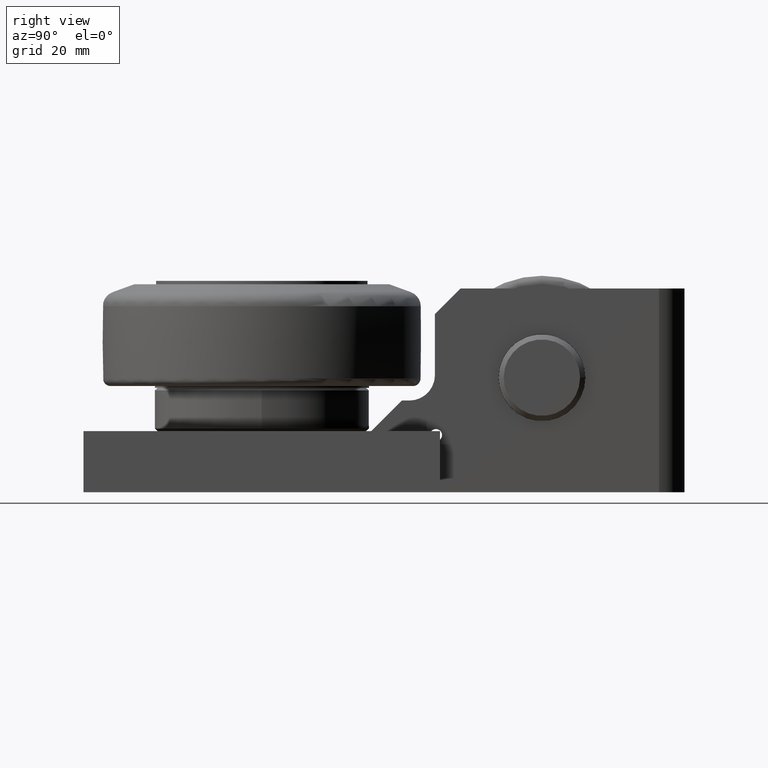
[diagram: clean part render]
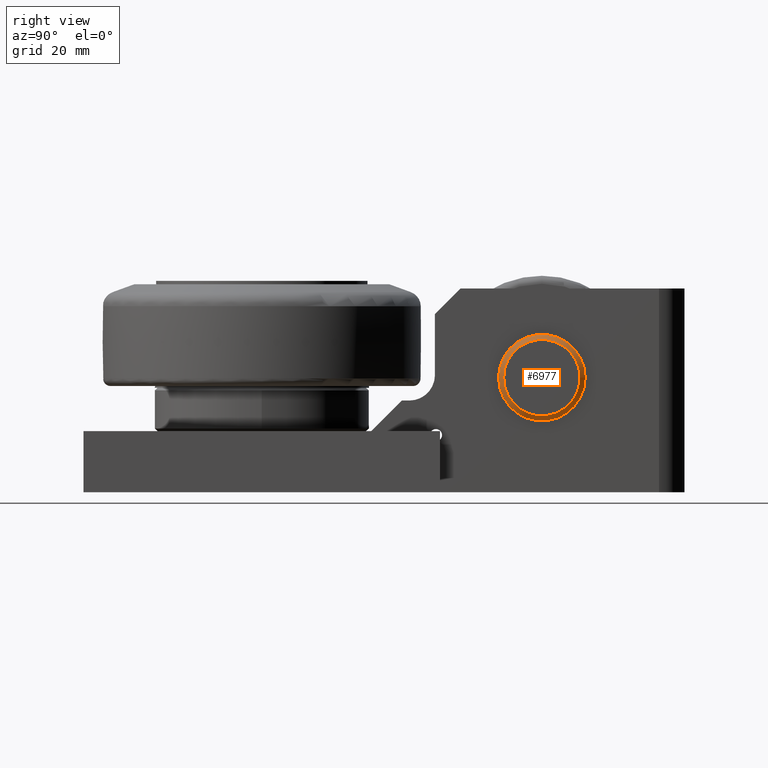
[diagram: same view with one face highlighted and labeled with its STEP entity id]
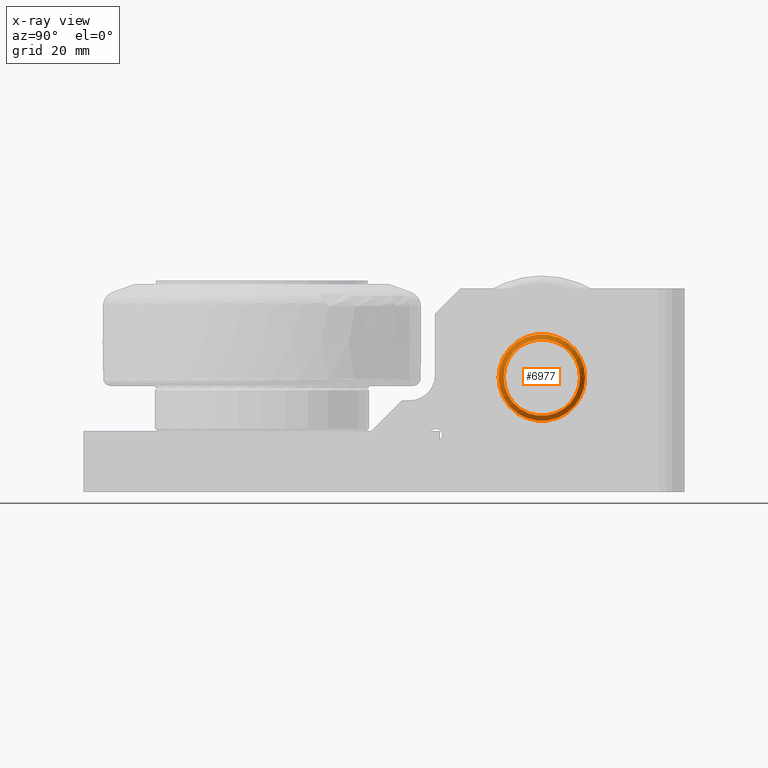
[diagram: x-ray of the same camera — body ghosted, the highlighted face saturated]
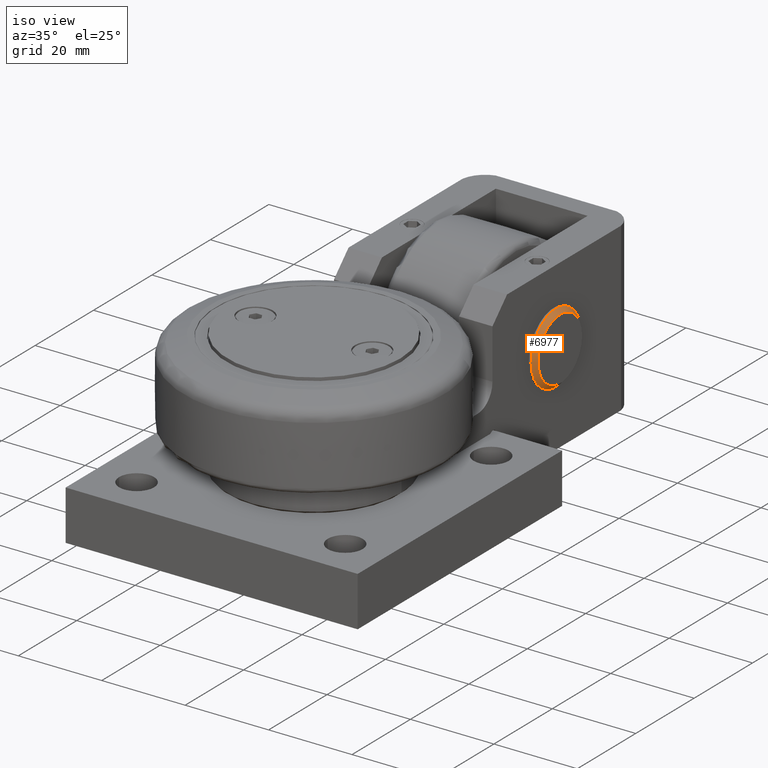
[diagram: same view with one face highlighted and labeled with its STEP entity id]
A machine part, right view. The second image highlights one B-rep face of the part: STEP entity #6977.
The next image is the same camera in x-ray: the body ghosted, the highlighted face saturated — about 0% of this face is hidden behind the body in this view.
A second angle (iso view) of the same face is appended — the face is thin or edge-on in the first view.
In plain terms, the highlighted conical surface has half-angle 45 deg.
Its self-contained STEP definition (entity closure, byte-faithful):
#340=CONICAL_SURFACE('',#8095,8.,0.785398163397448);
#704=FACE_OUTER_BOUND('',#1116,.T.);
#1116=EDGE_LOOP('',(#6479,#6480,#6481,#6482,#6483));
#1853=CIRCLE('',#8096,7.5);
#1854=CIRCLE('',#8097,8.5);
#1855=CIRCLE('',#8098,8.5);
#2191=LINE('',#13104,#2528);
#2528=VECTOR('',#10628,8.);
#3181=VERTEX_POINT('',#13101);
#3182=VERTEX_POINT('',#13103);
#3183=VERTEX_POINT('',#13105);
#4282=EDGE_CURVE('',#3181,#3181,#1853,.T.);
#4283=EDGE_CURVE('',#3181,#3182,#2191,.T.);
#4284=EDGE_CURVE('',#3182,#3183,#1854,.T.);
#4285=EDGE_CURVE('',#3183,#3182,#1855,.T.);
#6479=ORIENTED_EDGE('',*,*,#4282,.T.);
#6480=ORIENTED_EDGE('',*,*,#4283,.T.);
#6481=ORIENTED_EDGE('',*,*,#4284,.T.);
#6482=ORIENTED_EDGE('',*,*,#4285,.T.);
#6483=ORIENTED_EDGE('',*,*,#4283,.F.);
#6977=ADVANCED_FACE('',(#704),#340,.T.);
#8095=AXIS2_PLACEMENT_3D('',#13100,#10624,#10625);
#8096=AXIS2_PLACEMENT_3D('',#13102,#10626,#10627);
#8097=AXIS2_PLACEMENT_3D('',#13106,#10629,#10630);
#8098=AXIS2_PLACEMENT_3D('',#13107,#10631,#10632);
#10624=DIRECTION('center_axis',(-1.,-1.56551890760122E-62,2.22044604925031E-16));
#10625=DIRECTION('ref_axis',(1.68843729180023E-63,-1.,-6.29006581309533E-47));
#10626=DIRECTION('center_axis',(-1.,-1.56551890760122E-62,2.22044604925031E-16));
#10627=DIRECTION('ref_axis',(1.68843729180023E-63,-1.,-6.29006581309533E-47));
#10628=DIRECTION('',(-0.707106781186548,0.707106781186548,2.43604851491927E-16));
#10629=DIRECTION('center_axis',(1.,1.56551890760122E-62,-2.22044604925031E-16));
#10630=DIRECTION('ref_axis',(1.68843729180023E-63,-1.,-6.29006581309533E-47));
#10631=DIRECTION('center_axis',(1.,1.56551890760122E-62,-2.22044604925031E-16));
#10632=DIRECTION('ref_axis',(1.68843729180023E-63,-1.,-6.29006581309533E-47));
#13100=CARTESIAN_POINT('Origin',(15.180250509928,34.5266457154739,2.49999999999999));
#13101=CARTESIAN_POINT('',(15.680250509928,42.0266457154739,2.49999999999999));
#13102=CARTESIAN_POINT('Origin',(15.680250509928,34.5266457154739,2.49999999999999));
#13103=CARTESIAN_POINT('',(14.680250509928,43.0266457154739,2.49999999999999));
#13104=CARTESIAN_POINT('',(15.180250509928,42.5266457154739,2.49999999999999));
#13105=CARTESIAN_POINT('',(14.680250509928,26.0266457154739,2.49999999999999));
#13106=CARTESIAN_POINT('Origin',(14.680250509928,34.5266457154739,2.49999999999999));
#13107=CARTESIAN_POINT('Origin',(14.680250509928,34.5266457154739,2.49999999999999));